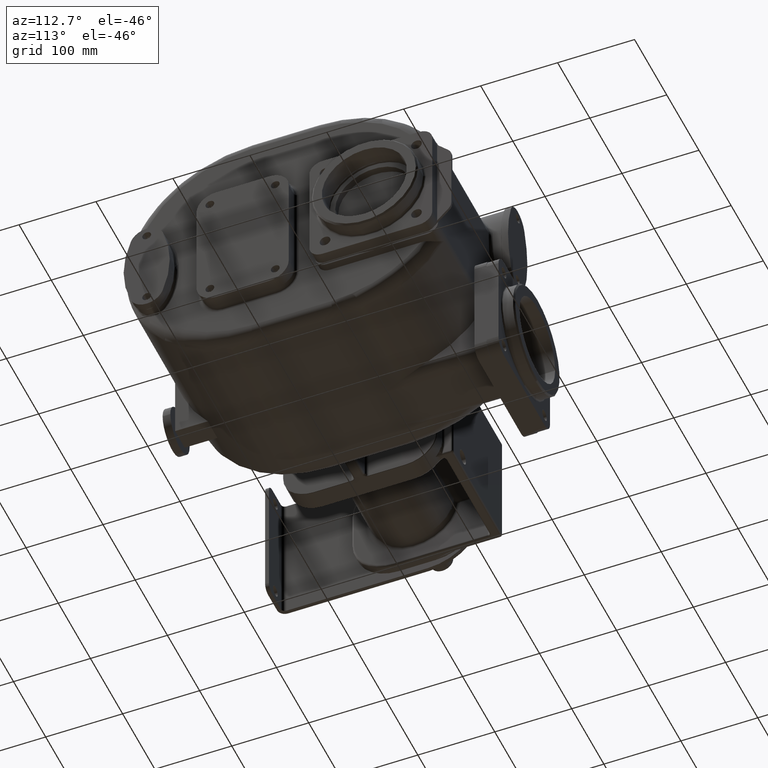
[diagram: clean part render]
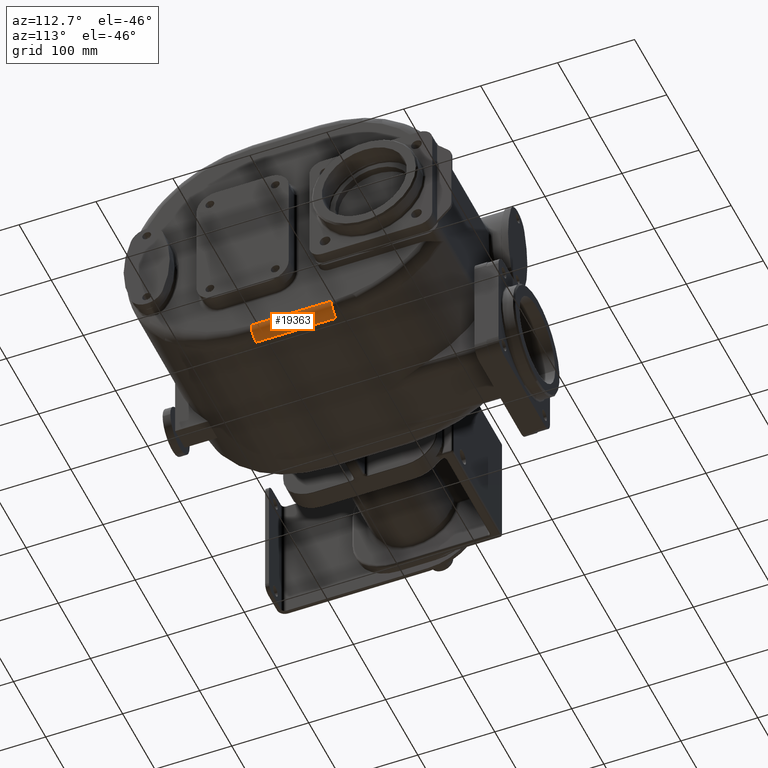
[diagram: same view with one face highlighted and labeled with its STEP entity id]
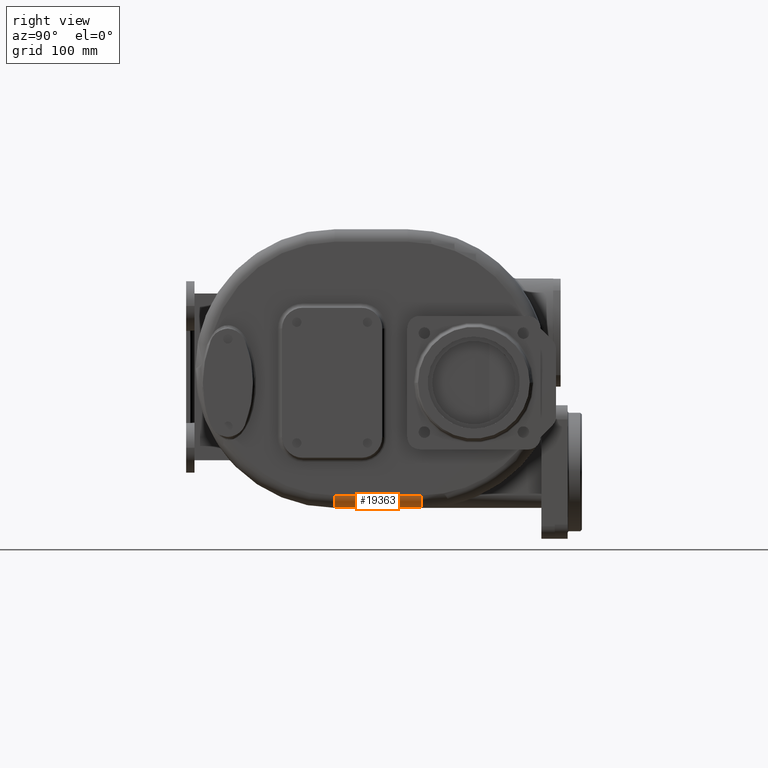
[diagram: same view with one face highlighted and labeled with its STEP entity id]
A machine part, auxiliary view. The second image highlights one B-rep face of the part: STEP entity #19363.
A second angle (right view) of the same face is appended — the face is thin or edge-on in the first view.
In plain terms, the highlighted cylindrical surface (edge-blend (fillet) strip) has radius 15 mm, axis along (0, 1, 0).
Its self-contained STEP definition (entity closure, byte-faithful):
#5385=DIRECTION('',(0.E0,1.E0,0.E0));
#5386=VECTOR('',#5385,1.040156259538E2);
#5387=CARTESIAN_POINT('',(1.8E2,1.68E2,-1.52E2));
#5388=LINE('',#5387,#5386);
#5734=CARTESIAN_POINT('',(1.65E2,1.68E2,-1.52E2));
#5735=DIRECTION('',(0.E0,1.E0,0.E0));
#5736=DIRECTION('',(1.E0,0.E0,0.E0));
#5737=AXIS2_PLACEMENT_3D('',#5734,#5735,#5736);
#5739=CARTESIAN_POINT('',(1.65E2,2.720156259538E2,-1.52E2));
#5740=DIRECTION('',(0.E0,1.E0,0.E0));
#5741=DIRECTION('',(1.E0,0.E0,0.E0));
#5742=AXIS2_PLACEMENT_3D('',#5739,#5740,#5741);
#5860=DIRECTION('',(0.E0,1.E0,0.E0));
#5861=VECTOR('',#5860,1.040156259532E2);
#5862=CARTESIAN_POINT('',(1.65E2,1.68E2,-1.67E2));
#5863=LINE('',#5862,#5861);
#11617=CARTESIAN_POINT('',(1.65E2,2.720156259538E2,-1.67E2));
#11619=VERTEX_POINT('',#11617);
#11621=CARTESIAN_POINT('',(1.8E2,2.720156259538E2,-1.52E2));
#11623=VERTEX_POINT('',#11621);
#11625=CARTESIAN_POINT('',(1.8E2,1.68E2,-1.52E2));
#11626=VERTEX_POINT('',#11625);
#11627=CARTESIAN_POINT('',(1.65E2,1.68E2,-1.67E2));
#11628=VERTEX_POINT('',#11627);
#19350=CARTESIAN_POINT('',(1.65E2,1.667065992051E2,-1.52E2));
#19351=DIRECTION('',(0.E0,1.E0,0.E0));
#19352=DIRECTION('',(1.E0,0.E0,0.E0));
#19353=AXIS2_PLACEMENT_3D('',#19350,#19351,#19352);
#19354=CYLINDRICAL_SURFACE('',#19353,1.5E1);
#19355=ORIENTED_EDGE('',*,*,#19028,.T.);
#19357=ORIENTED_EDGE('',*,*,#19356,.T.);
#19359=ORIENTED_EDGE('',*,*,#19358,.F.);
#19360=ORIENTED_EDGE('',*,*,#19338,.F.);
#19361=EDGE_LOOP('',(#19355,#19357,#19359,#19360));
#19362=FACE_OUTER_BOUND('',#19361,.F.);
#19363=ADVANCED_FACE('',(#19362),#19354,.T.);
#5738=CIRCLE('',#5737,1.5E1);
#5743=CIRCLE('',#5742,1.5E1);
#19028=EDGE_CURVE('',#11626,#11623,#5388,.T.);
#19338=EDGE_CURVE('',#11626,#11628,#5738,.T.);
#19356=EDGE_CURVE('',#11623,#11619,#5743,.T.);
#19358=EDGE_CURVE('',#11628,#11619,#5863,.T.);